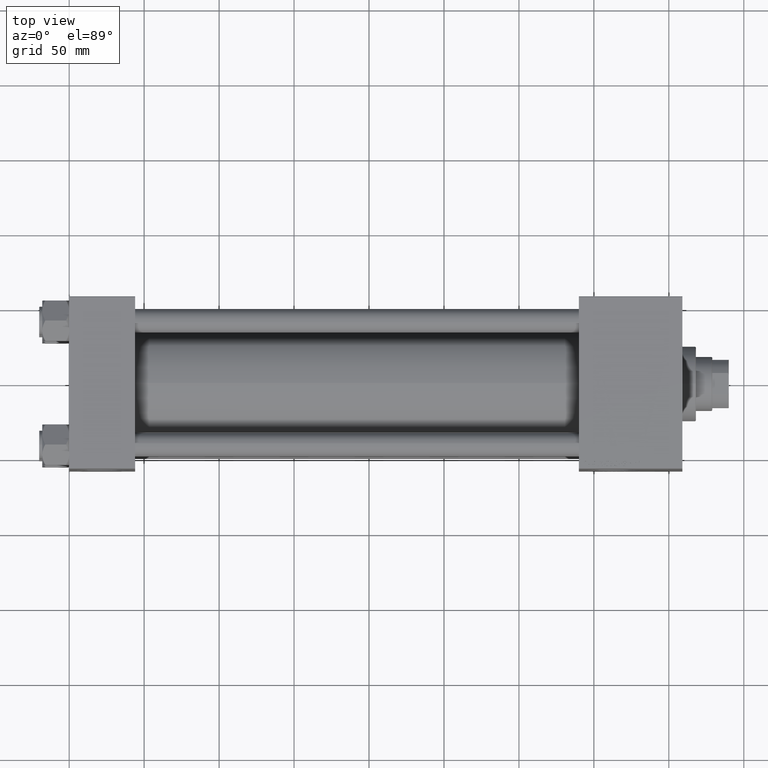
[diagram: clean part render]
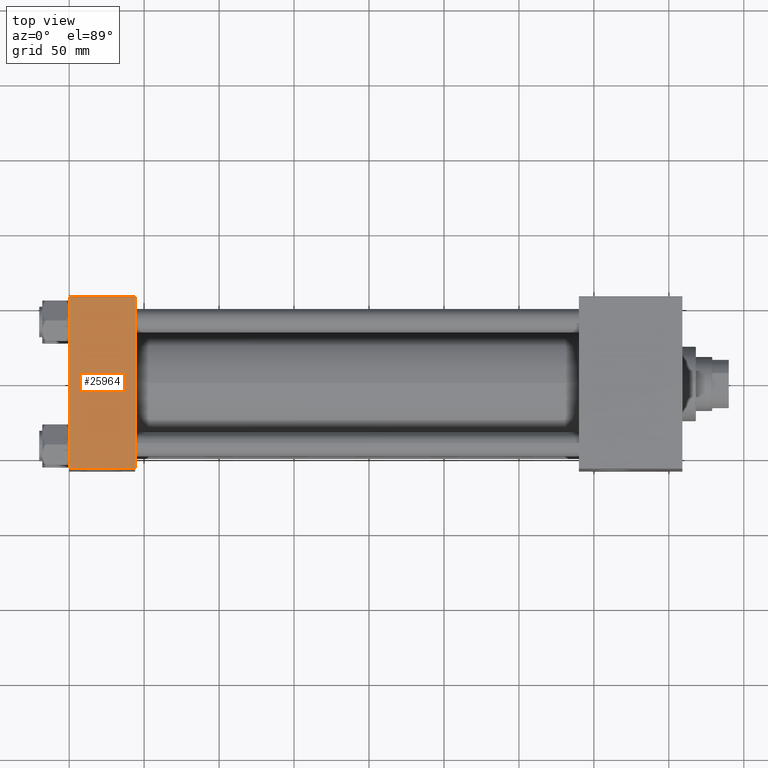
[diagram: same view with one face highlighted and labeled with its STEP entity id]
A machine part, top view. The second image highlights one B-rep face of the part: STEP entity #25964.
In plain terms, the highlighted planar face has unit normal (0, 0, -1).
Its self-contained STEP definition (entity closure, byte-faithful):
#282 = CARTESIAN_POINT ( 'NONE',  ( 0.000000000000000000, 57.00000000000000711, 57.50000000000000711 ) ) ;
#1452 = LINE ( 'NONE', #36908, #26907 ) ;
#1474 = CARTESIAN_POINT ( 'NONE',  ( 0.000000000000000000, -57.00000000000003553, 57.49999999999999289 ) ) ;
#4176 = PLANE ( 'NONE',  #46986 ) ;
#7290 = FACE_OUTER_BOUND ( 'NONE', #47183, .T. ) ;
#7293 = CARTESIAN_POINT ( 'NONE',  ( 0.000000000000000000, 57.00000000000000711, 57.50000000000000711 ) ) ;
#8213 = VERTEX_POINT ( 'NONE', #1474 ) ;
#11694 = VECTOR ( 'NONE', #22714, 1000.000000000000000 ) ;
#13247 = ORIENTED_EDGE ( 'NONE', *, *, #32696, .T. ) ;
#13470 = DIRECTION ( 'NONE',  ( 0.000000000000000000, -1.000000000000000000, -1.206764157201257045E-16 ) ) ;
#13982 = LINE ( 'NONE', #41735, #37622 ) ;
#16177 = CARTESIAN_POINT ( 'NONE',  ( 44.00000000000000000, -57.00000000000003553, 57.49999999999999289 ) ) ;
#19869 = VERTEX_POINT ( 'NONE', #24269 ) ;
#22714 = DIRECTION ( 'NONE',  ( 1.000000000000000000, 0.000000000000000000, 0.000000000000000000 ) ) ;
#22913 = ORIENTED_EDGE ( 'NONE', *, *, #49250, .T. ) ;
#23191 = CARTESIAN_POINT ( 'NONE',  ( 44.00000000000000000, 57.49999999999999289, 57.50000000000000711 ) ) ;
#24117 = VERTEX_POINT ( 'NONE', #16177 ) ;
#24269 = CARTESIAN_POINT ( 'NONE',  ( 44.00000000000000000, 57.00000000000000711, 57.50000000000000711 ) ) ;
#25964 = ADVANCED_FACE ( 'NONE', ( #7290 ), #4176, .F. ) ;
#26789 = DIRECTION ( 'NONE',  ( 0.000000000000000000, 1.206764157201257045E-16, -1.000000000000000000 ) ) ;
#26823 = CARTESIAN_POINT ( 'NONE',  ( 44.00000000000000000, -57.00000000000003553, 57.49999999999999289 ) ) ;
#26907 = VECTOR ( 'NONE', #48209, 1000.000000000000000 ) ;
#30953 = EDGE_CURVE ( 'NONE', #19869, #24117, #1452, .T. ) ;
#31123 = LINE ( 'NONE', #282, #31786 ) ;
#31491 = VERTEX_POINT ( 'NONE', #7293 ) ;
#31533 = ORIENTED_EDGE ( 'NONE', *, *, #30953, .F. ) ;
#31615 = DIRECTION ( 'NONE',  ( -1.000000000000000000, 0.000000000000000000, 0.000000000000000000 ) ) ;
#31786 = VECTOR ( 'NONE', #31615, 1000.000000000000000 ) ;
#32517 = ORIENTED_EDGE ( 'NONE', *, *, #36214, .T. ) ;
#32696 = EDGE_CURVE ( 'NONE', #19869, #31491, #31123, .T. ) ;
#36214 = EDGE_CURVE ( 'NONE', #31491, #8213, #13982, .T. ) ;
#36908 = CARTESIAN_POINT ( 'NONE',  ( 44.00000000000000000, 57.49999999999999289, 57.50000000000000711 ) ) ;
#37622 = VECTOR ( 'NONE', #13470, 1000.000000000000000 ) ;
#37898 = LINE ( 'NONE', #26823, #11694 ) ;
#41735 = CARTESIAN_POINT ( 'NONE',  ( 0.000000000000000000, 57.49999999999999289, 57.50000000000000711 ) ) ;
#42229 = DIRECTION ( 'NONE',  ( 0.000000000000000000, 1.000000000000000000, 1.206764157201257045E-16 ) ) ;
#46986 = AXIS2_PLACEMENT_3D ( 'NONE', #23191, #26789, #42229 ) ;
#47183 = EDGE_LOOP ( 'NONE', ( #32517, #22913, #31533, #13247 ) ) ;
#48209 = DIRECTION ( 'NONE',  ( 0.000000000000000000, -1.000000000000000000, -1.206764157201257045E-16 ) ) ;
#49250 = EDGE_CURVE ( 'NONE', #8213, #24117, #37898, .T. ) ;